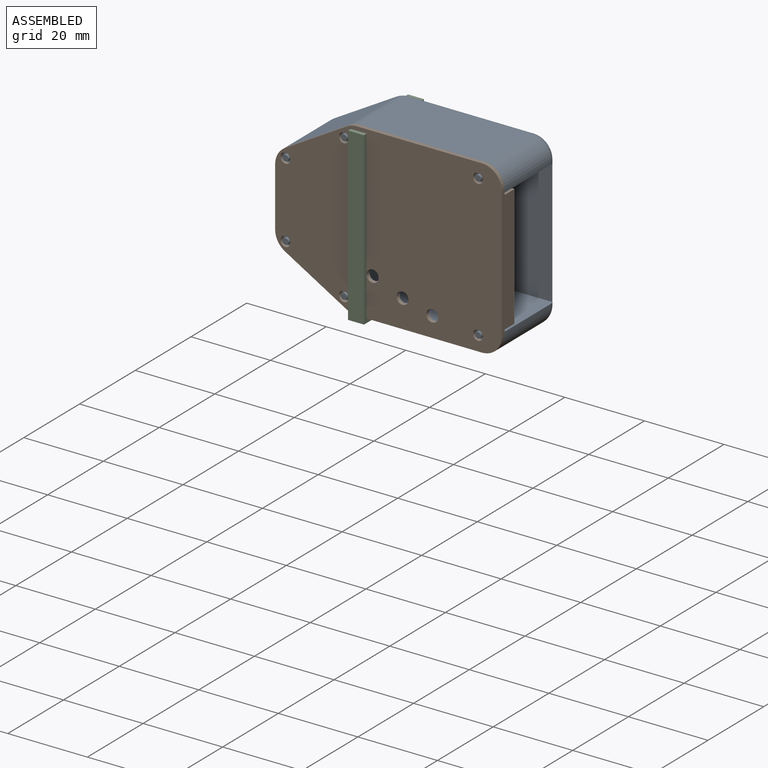
[diagram: assembled view]
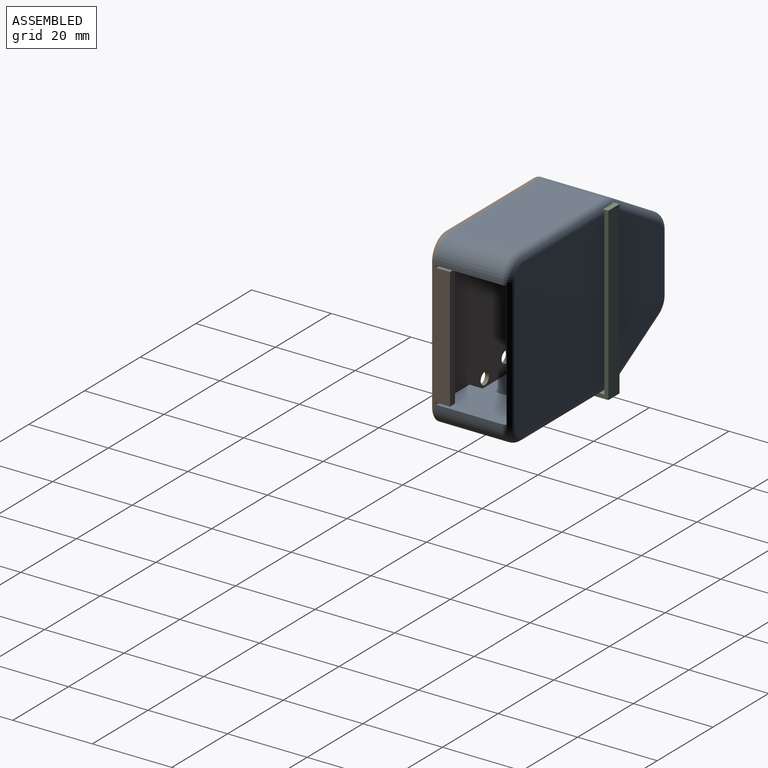
[diagram: assembled view, second angle]
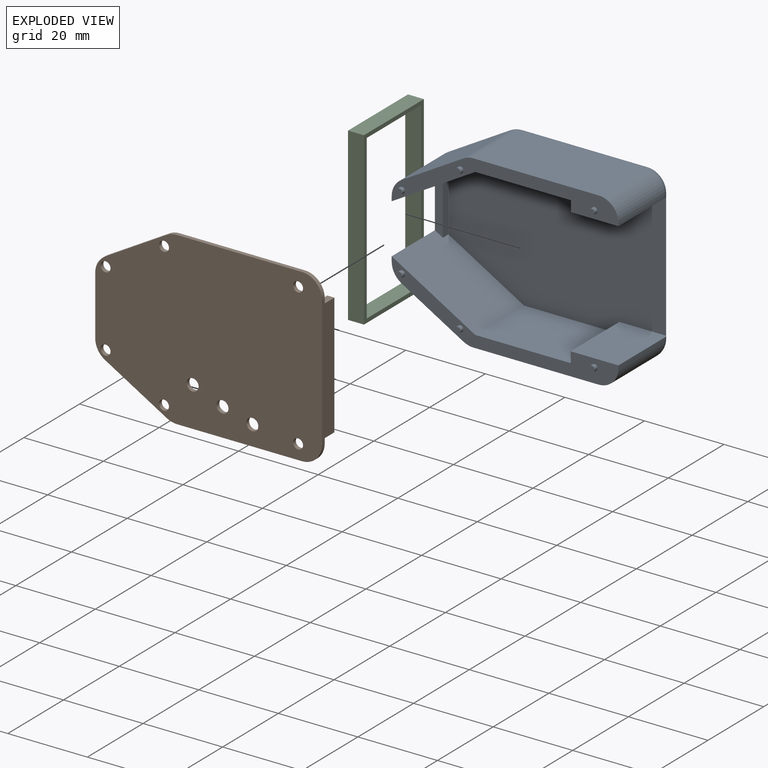
[diagram: exploded view]
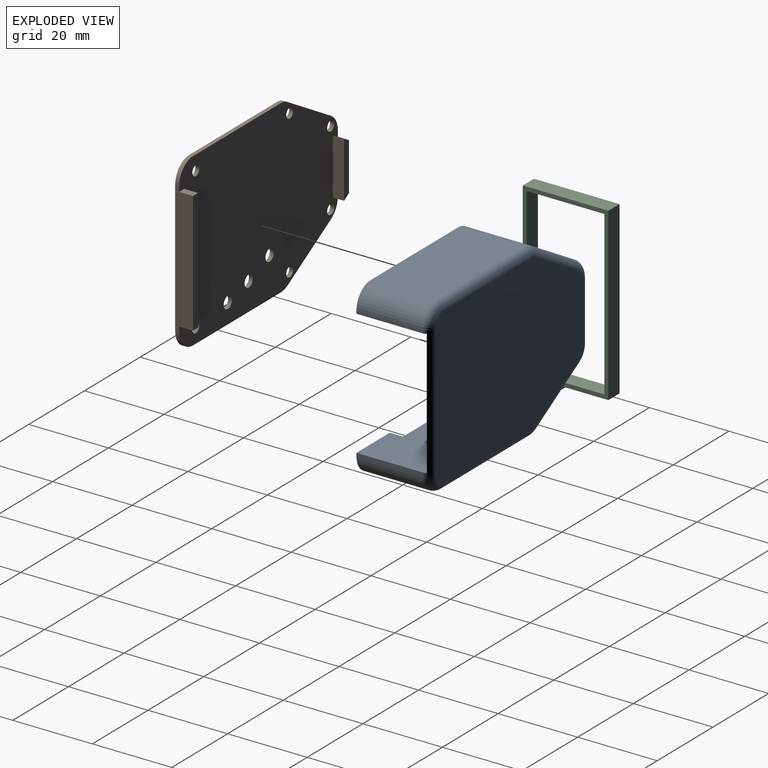
[diagram: exploded view, second angle]
ASSEMBLY  parts=3 mates=4
PART A: 51 faces, bbox 57.8x19.5x43.8 mm
  f0: plane 16.5x0.7mm, normal (1,0,0), area 11.5mm2, adj f17,f20,f38,f49
  f1: plane 54.73x37mm, normal (0,-1,0), area 1751.1mm2, adj f9,f11,f12,f13,f14,f16,f17,f18
  f2: plane 16.5x0.7mm, normal (1,0,0), area 11.5mm2, adj f14,f15,f33,f49
  f3: plane 31.45x16.5mm, normal (0,0,1), area 519mm2, adj f15,f33,f34,f48
  f4: plane 16.5x15.55mm, normal (-0.5,0,0.86), area 297mm2, adj f15,f34,f35,f44
  f5: plane 16.5x14.86mm, normal (-1,0,0), area 51.4mm2, adj f10,f11,f15,f16,f20,f35,f36,f40
  f6: plane 16.5x15.55mm, normal (-0.5,0,-0.86), area 297mm2, adj f20,f36,f37,f41
  f7: plane 31.45x16.5mm, normal (0,0,-1), area 519mm2, adj f20,f37,f38,f45
  f8: plane 53x39mm, normal (0,1,0), area 1878.5mm2, adj f39,f40,f41,f42,f43,f44,f45,f46
  f9: plane 14.83x2mm, normal (1,0,0), area 29.7mm2, adj f1,f10,f11,f16
  f10: plane 14.83x2mm, normal (0,-1,0), area 27.3mm2, adj f5,f9,f11,f16
  f11: plane 21x17.5mm, normal (0.5,0,-0.86), area 420.8mm2, adj f1,f5,f9,f10,f12,f15
  f12: plane 24x17.5mm, normal (0,0,-1), area 420mm2, adj f1,f11,f13,f15
  f13: plane 17.5x2.7mm, normal (-1,0,0), area 47.2mm2, adj f1,f12,f14,f15
  f14: plane 17.5x12mm, normal (0,0,-1), area 209.9mm2, adj f1,f2,f13,f15,f49
  f15: plane 57x15.25mm, normal (0,-1,0), area 212.4mm2, adj f2,f3,f4,f5,f11,f12,f13,f14
  f16: plane 21x17.5mm, normal (0.5,0,0.86), area 420.8mm2, adj f1,f5,f9,f10,f19,f20
  f17: plane 17.5x12mm, normal (0,0,1), area 209.9mm2, adj f0,f1,f18,f20,f49
  f18: plane 17.5x2.7mm, normal (-1,0,0), area 47.2mm2, adj f1,f17,f19,f20
  f19: plane 24x17.5mm, normal (0,0,1), area 420mm2, adj f1,f16,f18,f20
  f20: plane 57x15.25mm, normal (0,-1,0), area 212.4mm2, adj f0,f5,f6,f7,f16,f17,f18,f19
  f21: cylinder r=0.75mm len=1.5mm, axis (0,1,0), area 4.7mm2, adj f15,f22
  f22: plane 1.5x1.5mm, normal (0,-1,0), area 1.8mm2, adj f21
  f23: cylinder r=0.75mm len=1.5mm, axis (0,1,0), area 4.7mm2, adj f15,f24
  f24: plane 1.5x1.5mm, normal (0,-1,0), area 1.8mm2, adj f23
  f25: cylinder r=0.75mm len=1.5mm, axis (0,1,0), area 4.7mm2, adj f15,f26
  f26: plane 1.5x1.5mm, normal (0,-1,0), area 1.8mm2, adj f25
  f27: cylinder r=0.75mm len=1.5mm, axis (0,1,0), area 4.7mm2, adj f20,f28
  f28: plane 1.5x1.5mm, normal (0,-1,0), area 1.8mm2, adj f27
  f29: cylinder r=0.75mm len=1.5mm, axis (0,1,0), area 4.7mm2, adj f20,f30
  f30: plane 1.5x1.5mm, normal (0,-1,0), area 1.8mm2, adj f29
  f31: cylinder r=0.75mm len=1.5mm, axis (0,1,0), area 4.7mm2, adj f20,f32
  f32: plane 1.5x1.5mm, normal (0,-1,0), area 1.8mm2, adj f31
  f33: cylinder r=5mm len=16.5mm, axis (0,-1,0), area 129.6mm2, adj f2,f3,f15,f50
  f34: cylinder r=5mm len=16.5mm, axis (0,1,0), area 43.6mm2, adj f3,f4,f15,f46
  f35: cylinder r=5mm len=16.5mm, axis (0,1,0), area 86mm2, adj f4,f5,f15,f42
  f36: cylinder r=5mm len=16.5mm, axis (0,-1,0), area 86mm2, adj f5,f6,f20,f39
  f37: cylinder r=5mm len=16.5mm, axis (0,1,0), area 43.6mm2, adj f6,f7,f20,f43
  f38: cylinder r=5mm len=16.5mm, axis (0,1,0), area 129.6mm2, adj f0,f7,f20,f47
  f39: torus R=3mm, axis (0,-1,0), area 14mm2, adj f8,f36,f40,f41
  f40: cylinder r=2mm len=14.86mm, axis (0,0,1), area 46.7mm2, adj f5,f8,f39,f42
  f41: cylinder r=2mm len=16.56mm, axis (-0.86,0,0.5), area 56.5mm2, adj f6,f8,f39,f43
  f42: torus R=3mm, axis (0,-1,0), area 14mm2, adj f8,f35,f40,f44
  f43: torus R=3mm, axis (0,-1,0), area 7.1mm2, adj f8,f37,f41,f45
  f44: cylinder r=2mm len=16.56mm, axis (0.86,0,0.5), area 56.5mm2, adj f4,f8,f42,f46
  f45: cylinder r=2mm len=31.45mm, axis (-1,0,0), area 98.8mm2, adj f7,f8,f43,f47
  f46: torus R=3mm, axis (0,-1,0), area 7.1mm2, adj f8,f34,f44,f48
  f47: torus R=3mm, axis (0,-1,0), area 21.1mm2, adj f8,f38,f45,f49
  f48: cylinder r=2mm len=31.45mm, axis (1,0,0), area 98.8mm2, adj f3,f8,f46,f50
  f49: cylinder r=2mm len=33mm, axis (0,0,-1), area 70.6mm2, adj f0,f1,f2,f8,f14,f17,f47,f50
  f50: torus R=3mm, axis (0,-1,0), area 21.1mm2, adj f8,f33,f48,f49
PART B: 31 faces, bbox 57x4.5x43 mm
  f0: plane 14.86x3.8mm, normal (-1,0,0), area 48.6mm2, adj f1,f11,f12,f13,f23,f25,f26
  f1: cylinder r=5mm len=4.32mm, axis (0,1,0), area 5.2mm2, adj f0,f2,f12,f13
  f2: plane 15.55x9.07mm, normal (-0.5,0,-0.86), area 18mm2, adj f1,f3,f12,f13
  f3: cylinder r=5mm len=2.52mm, axis (0,1,0), area 2.6mm2, adj f2,f4,f12,f13
  f4: plane 31.45x1mm, normal (0,0,-1), area 31.5mm2, adj f3,f5,f12,f13
  f5: cylinder r=5mm len=5mm, axis (0,1,0), area 7.9mm2, adj f4,f6,f12,f13
  f6: plane 33x4.48mm, normal (1,0,0), area 139.5mm2, adj f5,f7,f12,f13,f27,f29,f30
  f7: cylinder r=5mm len=5mm, axis (0,1,0), area 7.9mm2, adj f6,f8,f12,f13
  f8: plane 31.45x1mm, normal (0,0,1), area 31.5mm2, adj f7,f9,f12,f13
  f9: cylinder r=5mm len=2.52mm, axis (0,1,0), area 2.6mm2, adj f8,f10,f12,f13
  f10: plane 15.55x9.07mm, normal (-0.5,0,0.86), area 18mm2, adj f9,f11,f12,f13
  f11: cylinder r=5mm len=4.32mm, axis (0,1,0), area 5.2mm2, adj f0,f10,f12,f13
  f12: plane 57x43mm, normal (0,-1,0), area 2171.7mm2, adj f0,f1,f2,f3,f4,f5,f6,f7
  f13: plane 57x43mm, normal (0,1,0), area 2093mm2, adj f0,f1,f2,f3,f4,f5,f6,f7
  f14: cylinder r=1.25mm len=2.5mm, axis (0,1,0), area 7.9mm2, adj f12,f13
  f15: cylinder r=1.25mm len=2.5mm, axis (0,1,0), area 7.9mm2, adj f12,f13
  f16: cylinder r=1.25mm len=2.5mm, axis (0,1,0), area 7.9mm2, adj f12,f13
  f17: cylinder r=1.25mm len=2.5mm, axis (0,1,0), area 7.9mm2, adj f12,f13
  f18: cylinder r=1.25mm len=2.5mm, axis (0,1,0), area 7.9mm2, adj f12,f13
  f19: cylinder r=1.25mm len=2.5mm, axis (0,1,0), area 7.9mm2, adj f12,f13
  f20: cylinder r=1.5mm len=3mm, axis (0,1,0), area 9.4mm2, adj f12,f13
  f21: cylinder r=1.5mm len=3mm, axis (0,1,0), area 9.4mm2, adj f12,f13
  f22: cylinder r=1.5mm len=3mm, axis (0,1,0), area 9.4mm2, adj f12,f13
  f23: plane 2.8x1.8mm, normal (-0.5,0,-0.86), area 5.8mm2, adj f0,f13,f24,f26
  f24: plane 14.14x2.8mm, normal (1,0,0), area 39.6mm2, adj f13,f23,f25,f26
  f25: plane 2.8x1.8mm, normal (-0.5,0,0.86), area 5.8mm2, adj f0,f13,f24,f26
  f26: plane 14.14x1.8mm, normal (0,1,0), area 23.6mm2, adj f0,f23,f24,f25
  f27: plane 3.48x1.8mm, normal (0,0,1), area 6.3mm2, adj f6,f13,f28,f30
  f28: plane 30.6x3.48mm, normal (-1,0,0), area 106.5mm2, adj f13,f27,f29,f30
  f29: plane 3.48x1.8mm, normal (0,0,-1), area 6.3mm2, adj f6,f13,f28,f30
  f30: plane 30.6x1.8mm, normal (0,1,0), area 55.1mm2, adj f6,f27,f28,f29
PART C: 10 faces, bbox 4x43x21.5 mm
  f0: plane 43.02x21.52mm, normal (1,0,0), area 125.1mm2, adj f2,f3,f4,f5,f6,f7,f8,f9
  f1: plane 43.02x21.52mm, normal (-1,0,0), area 125.1mm2, adj f2,f3,f4,f5,f6,f7,f8,f9
  f2: plane 43.02x4mm, normal (0,0,1), area 172.1mm2, adj f0,f1,f3,f5
  f3: plane 21.52x4mm, normal (0,-1,0), area 86.1mm2, adj f0,f1,f2,f4
  f4: plane 43.02x4mm, normal (0,0,-1), area 172.1mm2, adj f0,f1,f3,f5
  f5: plane 21.52x4mm, normal (0,1,0), area 86.1mm2, adj f0,f1,f2,f4
  f6: plane 41.02x4mm, normal (0,0,-1), area 164.1mm2, adj f0,f1,f7,f9
  f7: plane 19.52x4mm, normal (0,1,0), area 78.1mm2, adj f0,f1,f6,f8
  f8: plane 41.02x4mm, normal (0,0,1), area 164.1mm2, adj f0,f1,f7,f9
  f9: plane 19.52x4mm, normal (0,-1,0), area 78.1mm2, adj f0,f1,f6,f8
PLACE A t=(-50.3,-15.1,7.07)mm
PLACE B t=(-72.36,-32.6,6.33)mm
PLACE C rot(axis=(1,0,0),90deg) t=(-82.27,-23.84,6.08)mm
MATE planar C.f6 <-> B.f12  axis (0,1,0) through (-80.27,-33.6,6.08)mm
MATE fastened B.f16 <-> A.f25  axis (0,-1,0) through (-50.3,-33.6,24.9)mm
MATE planar A.f7 <-> C.f7  axis (0,0,-1) through (-65.03,-24.35,-14.43)mm
MATE slider B.f17 <-> A.f31  axis (0,-1,0) through (-50.3,-33.6,-10.76)mm
